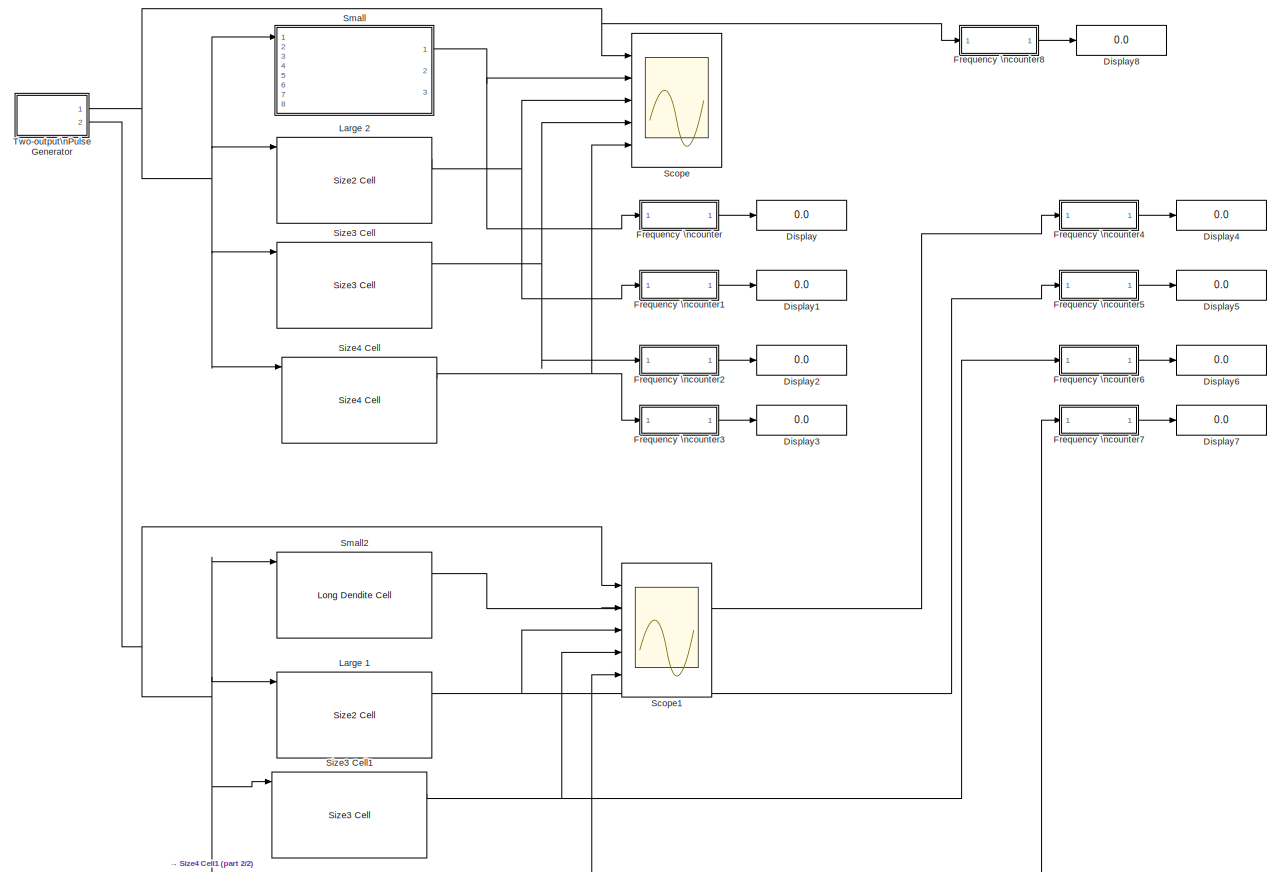
[diagram: root canvas - part 1/2, most of the canvas]
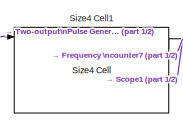
[diagram: root canvas - part 2/2, bottom left region]
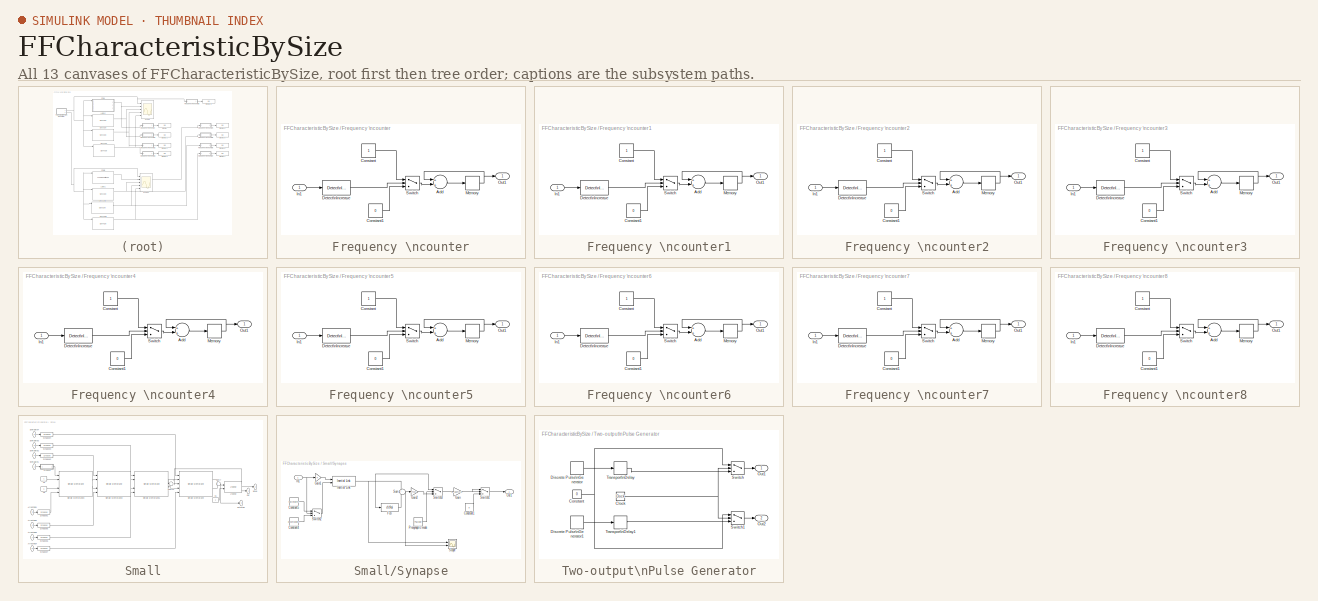
[diagram: thumbnail index - all 13 canvases of the model, root first then tree order]
MODEL FFCharacteristicBySize
KIND model
BLOCK [Display] Display
  Decimation = 1
  Ports = [1]
  SID = 1
BLOCK [Display] Display1
  Decimation = 1
  Ports = [1]
  SID = 2
BLOCK [Display] Display2
  Decimation = 1
  Ports = [1]
  SID = 3
BLOCK [Display] Display3
  Decimation = 1
  Ports = [1]
  SID = 4
BLOCK [Display] Display4
  Decimation = 1
  Ports = [1]
  SID = 309
BLOCK [Display] Display5
  Decimation = 1
  Ports = [1]
  SID = 310
BLOCK [Display] Display6
  Decimation = 1
  Ports = [1]
  SID = 311
BLOCK [Display] Display7
  Decimation = 1
  Ports = [1]
  SID = 312
BLOCK [Display] Display8
  Decimation = 1
  Ports = [1]
  SID = 354
BLOCK [SubSystem] Frequency \ncounter
  Ports = [1, 1]
  RequestExecContextInheritance = off
  SID = 5
BLOCK [Sum] Frequency \ncounter/Add
  InputSameDT = off
  OutDataTypeStr = Inherit: Inherit via internal rule
  Ports = [2, 1]
  SID = 7
  SaturateOnIntegerOverflow = off
BLOCK [Constant] Frequency \ncounter/Constant
  SID = 8
BLOCK [Constant] Frequency \ncounter/Constant1
  SID = 9
  Value = 0
BLOCK [Reference] Frequency \ncounter/Detect\nIncrease  REF=simulink/Logic and Bit\nOperations/Detect\nIncrease
  InputProcessing = Elements as channels (sample based)
  OutDataTypeStr = uint8
  Ports = [1, 1]
  SID = 10
  SourceBlock = simulink/Logic and Bit\nOperations/Detect\nIncrease
  SourceProductBaseCode = SL
  SourceProductName = Simulink
  SourceType = Detect Increase
  vinit = 0.0
BLOCK [Inport] Frequency \ncounter/In1
  IconDisplay = Port number
  SID = 6
BLOCK [Memory] Frequency \ncounter/Memory
  SID = 11
BLOCK [Outport] Frequency \ncounter/Out1
  IconDisplay = Port number
  SID = 13
BLOCK [Switch] Frequency \ncounter/Switch
  Criteria = u2 > Threshold
  InputSameDT = off
  SID = 12
  SaturateOnIntegerOverflow = off
BLOCK [SubSystem] Frequency \ncounter1
  Ports = [1, 1]
  RequestExecContextInheritance = off
  SID = 14
BLOCK [Sum] Frequency \ncounter1/Add
  InputSameDT = off
  OutDataTypeStr = Inherit: Inherit via internal rule
  Ports = [2, 1]
  SID = 16
  SaturateOnIntegerOverflow = off
BLOCK [Constant] Frequency \ncounter1/Constant
  SID = 17
BLOCK [Constant] Frequency \ncounter1/Constant1
  SID = 18
  Value = 0
BLOCK [Reference] Frequency \ncounter1/Detect\nIncrease  REF=simulink/Logic and Bit\nOperations/Detect\nIncrease
  InputProcessing = Elements as channels (sample based)
  OutDataTypeStr = uint8
  Ports = [1, 1]
  SID = 19
  SourceBlock = simulink/Logic and Bit\nOperations/Detect\nIncrease
  SourceProductBaseCode = SL
  SourceProductName = Simulink
  SourceType = Detect Increase
  vinit = 0.0
BLOCK [Inport] Frequency \ncounter1/In1
  IconDisplay = Port number
  SID = 15
BLOCK [Memory] Frequency \ncounter1/Memory
  SID = 20
BLOCK [Outport] Frequency \ncounter1/Out1
  IconDisplay = Port number
  SID = 22
BLOCK [Switch] Frequency \ncounter1/Switch
  Criteria = u2 > Threshold
  InputSameDT = off
  SID = 21
  SaturateOnIntegerOverflow = off
BLOCK [SubSystem] Frequency \ncounter2
  Ports = [1, 1]
  RequestExecContextInheritance = off
  SID = 23
BLOCK [Sum] Frequency \ncounter2/Add
  InputSameDT = off
  OutDataTypeStr = Inherit: Inherit via internal rule
  Ports = [2, 1]
  SID = 25
  SaturateOnIntegerOverflow = off
BLOCK [Constant] Frequency \ncounter2/Constant
  SID = 26
BLOCK [Constant] Frequency \ncounter2/Constant1
  SID = 27
  Value = 0
BLOCK [Reference] Frequency \ncounter2/Detect\nIncrease  REF=simulink/Logic and Bit\nOperations/Detect\nIncrease
  InputProcessing = Elements as channels (sample based)
  OutDataTypeStr = uint8
  Ports = [1, 1]
  SID = 28
  SourceBlock = simulink/Logic and Bit\nOperations/Detect\nIncrease
  SourceProductBaseCode = SL
  SourceProductName = Simulink
  SourceType = Detect Increase
  vinit = 0.0
BLOCK [Inport] Frequency \ncounter2/In1
  IconDisplay = Port number
  SID = 24
BLOCK [Memory] Frequency \ncounter2/Memory
  SID = 29
BLOCK [Outport] Frequency \ncounter2/Out1
  IconDisplay = Port number
  SID = 31
BLOCK [Switch] Frequency \ncounter2/Switch
  Criteria = u2 > Threshold
  InputSameDT = off
  SID = 30
  SaturateOnIntegerOverflow = off
BLOCK [SubSystem] Frequency \ncounter3
  Ports = [1, 1]
  RequestExecContextInheritance = off
  SID = 32
BLOCK [Sum] Frequency \ncounter3/Add
  InputSameDT = off
  OutDataTypeStr = Inherit: Inherit via internal rule
  Ports = [2, 1]
  SID = 34
  SaturateOnIntegerOverflow = off
BLOCK [Constant] Frequency \ncounter3/Constant
  SID = 35
BLOCK [Constant] Frequency \ncounter3/Constant1
  SID = 36
  Value = 0
BLOCK [Reference] Frequency \ncounter3/Detect\nIncrease  REF=simulink/Logic and Bit\nOperations/Detect\nIncrease
  InputProcessing = Elements as channels (sample based)
  OutDataTypeStr = uint8
  Ports = [1, 1]
  SID = 37
  SourceBlock = simulink/Logic and Bit\nOperations/Detect\nIncrease
  SourceProductBaseCode = SL
  SourceProductName = Simulink
  SourceType = Detect Increase
  vinit = 0.0
BLOCK [Inport] Frequency \ncounter3/In1
  IconDisplay = Port number
  SID = 33
BLOCK [Memory] Frequency \ncounter3/Memory
  SID = 38
BLOCK [Outport] Frequency \ncounter3/Out1
  IconDisplay = Port number
  SID = 40
BLOCK [Switch] Frequency \ncounter3/Switch
  Criteria = u2 > Threshold
  InputSameDT = off
  SID = 39
  SaturateOnIntegerOverflow = off
BLOCK [SubSystem] Frequency \ncounter4
  Ports = [1, 1]
  RequestExecContextInheritance = off
  SID = 313
BLOCK [Sum] Frequency \ncounter4/Add
  InputSameDT = off
  OutDataTypeStr = Inherit: Inherit via internal rule
  Ports = [2, 1]
  SID = 315
  SaturateOnIntegerOverflow = off
BLOCK [Constant] Frequency \ncounter4/Constant
  SID = 316
BLOCK [Constant] Frequency \ncounter4/Constant1
  SID = 317
  Value = 0
BLOCK [Reference] Frequency \ncounter4/Detect\nIncrease  REF=simulink/Logic and Bit\nOperations/Detect\nIncrease
  InputProcessing = Elements as channels (sample based)
  OutDataTypeStr = uint8
  Ports = [1, 1]
  SID = 318
  SourceBlock = simulink/Logic and Bit\nOperations/Detect\nIncrease
  SourceProductBaseCode = SL
  SourceProductName = Simulink
  SourceType = Detect Increase
  vinit = 0.0
BLOCK [Inport] Frequency \ncounter4/In1
  IconDisplay = Port number
  SID = 314
BLOCK [Memory] Frequency \ncounter4/Memory
  SID = 319
BLOCK [Outport] Frequency \ncounter4/Out1
  IconDisplay = Port number
  SID = 321
BLOCK [Switch] Frequency \ncounter4/Switch
  Criteria = u2 > Threshold
  InputSameDT = off
  SID = 320
  SaturateOnIntegerOverflow = off
BLOCK [SubSystem] Frequency \ncounter5
  Ports = [1, 1]
  RequestExecContextInheritance = off
  SID = 322
BLOCK [Sum] Frequency \ncounter5/Add
  InputSameDT = off
  OutDataTypeStr = Inherit: Inherit via internal rule
  Ports = [2, 1]
  SID = 324
  SaturateOnIntegerOverflow = off
BLOCK [Constant] Frequency \ncounter5/Constant
  SID = 325
BLOCK [Constant] Frequency \ncounter5/Constant1
  SID = 326
  Value = 0
BLOCK [Reference] Frequency \ncounter5/Detect\nIncrease  REF=simulink/Logic and Bit\nOperations/Detect\nIncrease
  InputProcessing = Elements as channels (sample based)
  OutDataTypeStr = uint8
  Ports = [1, 1]
  SID = 327
  SourceBlock = simulink/Logic and Bit\nOperations/Detect\nIncrease
  SourceProductBaseCode = SL
  SourceProductName = Simulink
  SourceType = Detect Increase
  vinit = 0.0
BLOCK [Inport] Frequency \ncounter5/In1
  IconDisplay = Port number
  SID = 323
BLOCK [Memory] Frequency \ncounter5/Memory
  SID = 328
BLOCK [Outport] Frequency \ncounter5/Out1
  IconDisplay = Port number
  SID = 330
BLOCK [Switch] Frequency \ncounter5/Switch
  Criteria = u2 > Threshold
  InputSameDT = off
  SID = 329
  SaturateOnIntegerOverflow = off
BLOCK [SubSystem] Frequency \ncounter6
  Ports = [1, 1]
  RequestExecContextInheritance = off
  SID = 331
BLOCK [Sum] Frequency \ncounter6/Add
  InputSameDT = off
  OutDataTypeStr = Inherit: Inherit via internal rule
  Ports = [2, 1]
  SID = 333
  SaturateOnIntegerOverflow = off
BLOCK [Constant] Frequency \ncounter6/Constant
  SID = 334
BLOCK [Constant] Frequency \ncounter6/Constant1
  SID = 335
  Value = 0
BLOCK [Reference] Frequency \ncounter6/Detect\nIncrease  REF=simulink/Logic and Bit\nOperations/Detect\nIncrease
  InputProcessing = Elements as channels (sample based)
  OutDataTypeStr = uint8
  Ports = [1, 1]
  SID = 336
  SourceBlock = simulink/Logic and Bit\nOperations/Detect\nIncrease
  SourceProductBaseCode = SL
  SourceProductName = Simulink
  SourceType = Detect Increase
  vinit = 0.0
BLOCK [Inport] Frequency \ncounter6/In1
  IconDisplay = Port number
  SID = 332
BLOCK [Memory] Frequency \ncounter6/Memory
  SID = 337
BLOCK [Outport] Frequency \ncounter6/Out1
  IconDisplay = Port number
  SID = 339
BLOCK [Switch] Frequency \ncounter6/Switch
  Criteria = u2 > Threshold
  InputSameDT = off
  SID = 338
  SaturateOnIntegerOverflow = off
BLOCK [SubSystem] Frequency \ncounter7
  Ports = [1, 1]
  RequestExecContextInheritance = off
  SID = 340
BLOCK [Sum] Frequency \ncounter7/Add
  InputSameDT = off
  OutDataTypeStr = Inherit: Inherit via internal rule
  Ports = [2, 1]
  SID = 342
  SaturateOnIntegerOverflow = off
BLOCK [Constant] Frequency \ncounter7/Constant
  SID = 343
BLOCK [Constant] Frequency \ncounter7/Constant1
  SID = 344
  Value = 0
BLOCK [Reference] Frequency \ncounter7/Detect\nIncrease  REF=simulink/Logic and Bit\nOperations/Detect\nIncrease
  InputProcessing = Elements as channels (sample based)
  OutDataTypeStr = uint8
  Ports = [1, 1]
  SID = 345
  SourceBlock = simulink/Logic and Bit\nOperations/Detect\nIncrease
  SourceProductBaseCode = SL
  SourceProductName = Simulink
  SourceType = Detect Increase
  vinit = 0.0
BLOCK [Inport] Frequency \ncounter7/In1
  IconDisplay = Port number
  SID = 341
BLOCK [Memory] Frequency \ncounter7/Memory
  SID = 346
BLOCK [Outport] Frequency \ncounter7/Out1
  IconDisplay = Port number
  SID = 348
BLOCK [Switch] Frequency \ncounter7/Switch
  Criteria = u2 > Threshold
  InputSameDT = off
  SID = 347
  SaturateOnIntegerOverflow = off
BLOCK [SubSystem] Frequency \ncounter8
  Ports = [1, 1]
  RequestExecContextInheritance = off
  SID = 355
BLOCK [Sum] Frequency \ncounter8/Add
  InputSameDT = off
  OutDataTypeStr = Inherit: Inherit via internal rule
  Ports = [2, 1]
  SID = 357
  SaturateOnIntegerOverflow = off
BLOCK [Constant] Frequency \ncounter8/Constant
  SID = 358
BLOCK [Constant] Frequency \ncounter8/Constant1
  SID = 359
  Value = 0
BLOCK [Reference] Frequency \ncounter8/Detect\nIncrease  REF=simulink/Logic and Bit\nOperations/Detect\nIncrease
  InputProcessing = Elements as channels (sample based)
  OutDataTypeStr = uint8
  Ports = [1, 1]
  SID = 360
  SourceBlock = simulink/Logic and Bit\nOperations/Detect\nIncrease
  SourceProductBaseCode = SL
  SourceProductName = Simulink
  SourceType = Detect Increase
  vinit = 0.0
BLOCK [Inport] Frequency \ncounter8/In1
  IconDisplay = Port number
  SID = 356
BLOCK [Memory] Frequency \ncounter8/Memory
  SID = 361
BLOCK [Outport] Frequency \ncounter8/Out1
  IconDisplay = Port number
  SID = 363
BLOCK [Switch] Frequency \ncounter8/Switch
  Criteria = u2 > Threshold
  InputSameDT = off
  SID = 362
  SaturateOnIntegerOverflow = off
BLOCK [Reference] Large 1  REF=NeuroModelerLibrary/Sized Cells/Size2 Cell
  AllowZeroVariantControls = off
  GeneratePreprocessorConditionals = off
  Ports = [8, 3]
  PropagateVariantConditions = off
  SID = 367
  ShowPortLabels = FromPortIcon
  SourceBlock = NeuroModelerLibrary/Sized Cells/Size2 Cell
  SourceType = SubSystem
  SystemSampleTime = -1
BLOCK [Reference] Large 2  REF=NeuroModelerLibrary/Sized Cells/Size2 Cell
  AllowZeroVariantControls = off
  GeneratePreprocessorConditionals = off
  Ports = [8, 3]
  PropagateVariantConditions = off
  SID = 364
  ShowPortLabels = FromPortIcon
  SourceBlock = NeuroModelerLibrary/Sized Cells/Size2 Cell
  SourceType = SubSystem
  SystemSampleTime = -1
BLOCK [Scope] Scope
  Floating = off
  NumInputPorts = 5
  Ports = [5]
  SID = 141
  ScopeSpecificationString = Simulink.scopes.TimeScopeBlockCfg('CurrentConfiguration', extmgr.ConfigurationSet(extmgr.Configuration('Core','General UI',true),extmgr.Configuration('Core','Source UI',true),extmgr.Configuration('Sources','WiredSimulink',true,'DataLoggingSaveFormat','StructureWithTime','DataLoggingMaxPoints','50000','DataLoggingLimitDataPoints',true,'DataLoggingDecimation','1','DataLoggingDecimateData',true),extm...<+4430ch>
BLOCK [Scope] Scope1
  Floating = off
  NumInputPorts = 5
  Ports = [5]
  SID = 351
  ScopeSpecificationString = Simulink.scopes.TimeScopeBlockCfg('CurrentConfiguration', extmgr.ConfigurationSet(extmgr.Configuration('Core','General UI',true),extmgr.Configuration('Core','Source UI',true),extmgr.Configuration('Sources','WiredSimulink',true,'DataLoggingVariableName','ScopeData1','DataLoggingSaveFormat','StructureWithTime','DataLoggingMaxPoints','50000','DataLoggingLimitDataPoints',true,'DataLoggingDecimation','...<+4482ch>
BLOCK [Reference] Size3 Cell  REF=NeuroModelerLibrary/Sized Cells/Size3 Cell
  AllowZeroVariantControls = off
  GeneratePreprocessorConditionals = off
  Ports = [8, 3]
  PropagateVariantConditions = off
  SID = 365
  ShowPortLabels = FromPortIcon
  SourceBlock = NeuroModelerLibrary/Sized Cells/Size3 Cell
  SourceType = SubSystem
  SystemSampleTime = -1
BLOCK [Reference] Size3 Cell1  REF=NeuroModelerLibrary/Sized Cells/Size3 Cell
  AllowZeroVariantControls = off
  GeneratePreprocessorConditionals = off
  Ports = [8, 3]
  PropagateVariantConditions = off
  SID = 368
  ShowPortLabels = FromPortIcon
  SourceBlock = NeuroModelerLibrary/Sized Cells/Size3 Cell
  SourceType = SubSystem
  SystemSampleTime = -1
BLOCK [Reference] Size4 Cell  REF=NeuroModelerLibrary/Sized Cells/Size4 Cell
  AllowZeroVariantControls = off
  GeneratePreprocessorConditionals = off
  Ports = [8, 3]
  PropagateVariantConditions = off
  SID = 366
  ShowPortLabels = FromPortIcon
  SourceBlock = NeuroModelerLibrary/Sized Cells/Size4 Cell
  SourceType = SubSystem
  SystemSampleTime = -1
BLOCK [Reference] Size4 Cell1  REF=NeuroModelerLibrary/Sized Cells/Size4 Cell
  AllowZeroVariantControls = off
  GeneratePreprocessorConditionals = off
  Ports = [8, 3]
  PropagateVariantConditions = off
  SID = 369
  ShowPortLabels = FromPortIcon
  SourceBlock = NeuroModelerLibrary/Sized Cells/Size4 Cell
  SourceType = SubSystem
  SystemSampleTime = -1
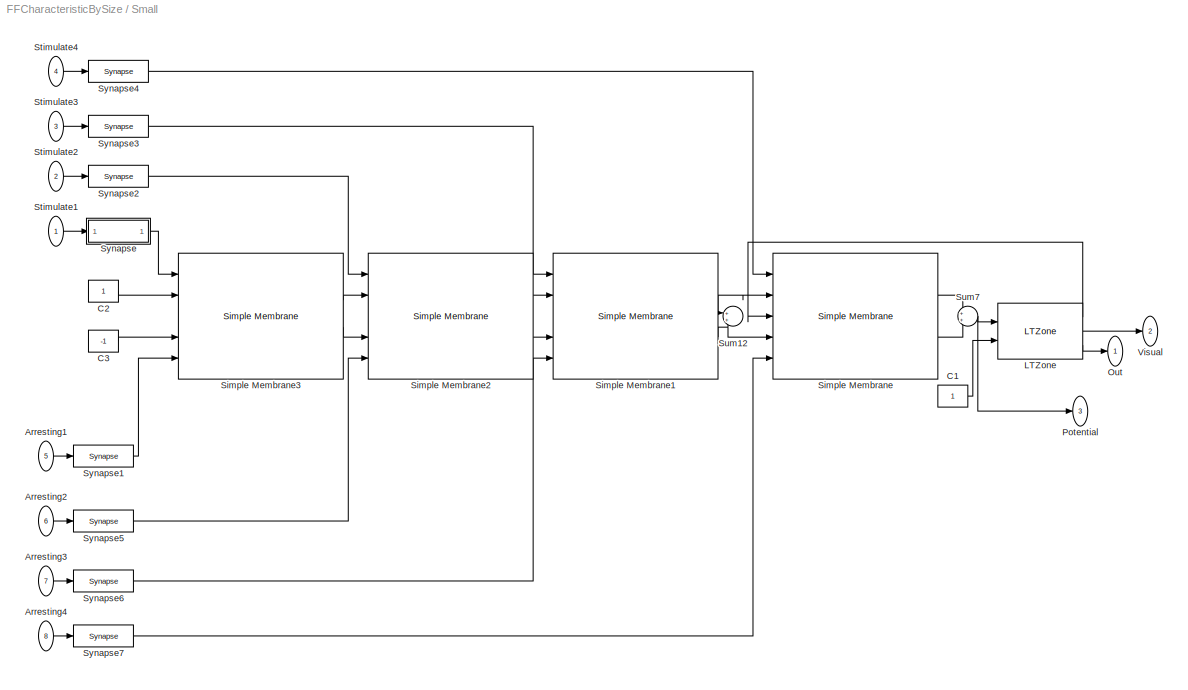
BLOCK [SubSystem] Small
  AncestorBlock = NeuroModelerLibrary/Dendrites Cells/Long Dendite Cell
  Ports = [8, 3]
  RequestExecContextInheritance = off
  SID = 305
BLOCK [Inport] Small/Arresting1
  IconDisplay = Port number
  Port = 5
  SID = 305:42
BLOCK [Inport] Small/Arresting2
  IconDisplay = Port number
  Port = 6
  SID = 305:43
BLOCK [Inport] Small/Arresting3
  IconDisplay = Port number
  Port = 7
  SID = 305:44
BLOCK [Inport] Small/Arresting4
  IconDisplay = Port number
  Port = 8
  SID = 305:45
BLOCK [Constant] Small/C1
  SID = 305:46
BLOCK [Constant] Small/C2
  SID = 305:47
BLOCK [Constant] Small/C3
  SID = 305:48
  Value = -1
BLOCK [Reference] Small/LTZone  REF=NeuroModelerLibrary/Neuron Elements/LTZone
  FB = 1.7
  IT = 0.005
  NM = 1
  Ports = [2, 3]
  SID = 305:49
  SourceBlock = NeuroModelerLibrary/Neuron Elements/LTZone
  SourceType = Ion pump
  T = 0.001
BLOCK [Outport] Small/Out
  IconDisplay = Port number
  SID = 305:64
BLOCK [Outport] Small/Potential
  IconDisplay = Port number
  Port = 3
  SID = 305:66
BLOCK [Reference] Small/Simple Membrane  REF=NeuroModelerLibrary/Neuron Elements/Simple Membrane
  ACm = 1e-9
  ARFm = 1e8
  ARm = 1e7
  ECm = 1e-9
  ERFm = 1e8
  ERm = 1e7
  Ports = [5, 2]
  SID = 305:50
  SourceBlock = NeuroModelerLibrary/Neuron Elements/Simple Membrane
BLOCK [Reference] Small/Simple Membrane1  REF=NeuroModelerLibrary/Neuron Elements/Simple Membrane
  ACm = 1e-9
  ARFm = 1e8
  ARm = 1e7
  ECm = 1e-9
  ERFm = 1e8
  ERm = 1e7
  Ports = [5, 2]
  SID = 305:51
  SourceBlock = NeuroModelerLibrary/Neuron Elements/Simple Membrane
BLOCK [Reference] Small/Simple Membrane2  REF=NeuroModelerLibrary/Neuron Elements/Simple Membrane
  ACm = 1e-9
  ARFm = 1e8
  ARm = 1e7
  ECm = 1e-9
  ERFm = 1e8
  ERm = 1e7
  Ports = [5, 2]
  SID = 305:52
  SourceBlock = NeuroModelerLibrary/Neuron Elements/Simple Membrane
BLOCK [Reference] Small/Simple Membrane3  REF=NeuroModelerLibrary/Neuron Elements/Simple Membrane
  ACm = 1e-9
  ARFm = 1e8
  ARm = 1e7
  ECm = 1e-9
  ERFm = 1e8
  ERm = 1e7
  Ports = [5, 2]
  SID = 305:53
  SourceBlock = NeuroModelerLibrary/Neuron Elements/Simple Membrane
BLOCK [Inport] Small/Stimulate1
  IconDisplay = Port number
  SID = 305:38
BLOCK [Inport] Small/Stimulate2
  IconDisplay = Port number
  Port = 2
  SID = 305:39
BLOCK [Inport] Small/Stimulate3
  IconDisplay = Port number
  Port = 3
  SID = 305:40
BLOCK [Inport] Small/Stimulate4
  IconDisplay = Port number
  Port = 4
  SID = 305:41
BLOCK [Sum] Small/Sum12
  IconShape = round
  Ports = [2, 1]
  SID = 305:54
BLOCK [Sum] Small/Sum7
  IconShape = round
  Ports = [2, 1]
  SID = 305:55
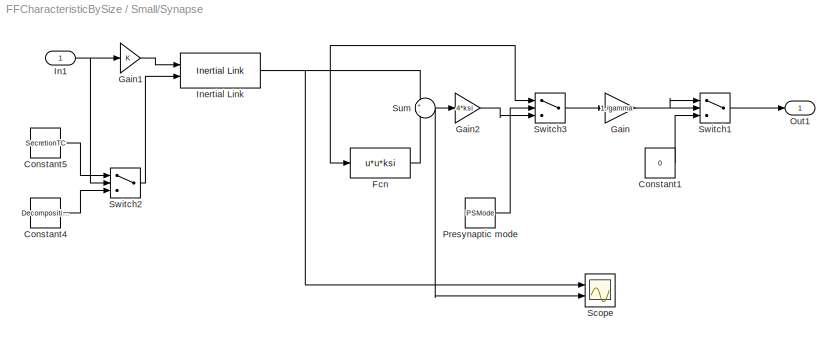
BLOCK [SubSystem] Small/Synapse
  Ports = [1, 1]
  RequestExecContextInheritance = off
  SID = 305:56
BLOCK [Constant] Small/Synapse/Constant1
  SID = 305:766
  Value = 0
BLOCK [Constant] Small/Synapse/Constant4
  SID = 305:767
  Value = DecompositionTC
BLOCK [Constant] Small/Synapse/Constant5
  SID = 305:768
  Value = SecretionTC
BLOCK [Fcn] Small/Synapse/Fcn
  Expr = u*u*ksi
  SID = 305:769
BLOCK [Gain] Small/Synapse/Gain
  Gain = 1./gamma
  SID = 305:770
BLOCK [Gain] Small/Synapse/Gain1
  SID = 305:771
BLOCK [Gain] Small/Synapse/Gain2
  Gain = 4*ksi
  SID = 305:772
BLOCK [Inport] Small/Synapse/In1
  IconDisplay = Port number
  SID = 305:765
BLOCK [Reference] Small/Synapse/Inertial Link  REF=NeuroModelerLibrary/Support/Inertial Link
  AllowZeroVariantControls = off
  GeneratePreprocessorConditionals = off
  Ports = [2, 1]
  PropagateVariantConditions = off
  SID = 305:773
  ShowPortLabels = FromPortIcon
  SourceBlock = NeuroModelerLibrary/Support/Inertial Link
  SourceType = SubSystem
  SystemSampleTime = -1
BLOCK [Outport] Small/Synapse/Out1
  IconDisplay = Port number
  SID = 305:780
BLOCK [Constant] Small/Synapse/Presynaptic mode
  SID = 305:774
  Value = PSMode
BLOCK [Scope] Small/Synapse/Scope
  Floating = off
  NumInputPorts = 2
  Ports = [2]
  SID = 305:775
  ScopeSpecificationString = Simulink.scopes.TimeScopeBlockCfg('CurrentConfiguration', extmgr.ConfigurationSet(extmgr.Configuration('Core','General UI',true),extmgr.Configuration('Core','Source UI',true),extmgr.Configuration('Sources','WiredSimulink',true,'DataLoggingSaveFormat','StructureWithTime','DataLoggingLimitDataPoints',true,'DataLoggingDecimation','1','DataLoggingDecimateData',true),extmgr.Configuration('Visuals','Tim...<+2301ch>
BLOCK [Sum] Small/Synapse/Sum
  IconShape = round
  InputSameDT = off
  Inputs = +-
  OutDataTypeStr = Inherit: Inherit via internal rule
  Ports = [2, 1]
  SID = 305:776
BLOCK [Switch] Small/Synapse/Switch1
  InputSameDT = off
  SID = 305:777
  SaturateOnIntegerOverflow = off
BLOCK [Switch] Small/Synapse/Switch2
  InputSameDT = off
  SID = 305:778
  SaturateOnIntegerOverflow = off
  Threshold = 1
BLOCK [Switch] Small/Synapse/Switch3
  Criteria = u2 > Threshold
  InputSameDT = off
  SID = 305:779
  SaturateOnIntegerOverflow = off
BLOCK [Reference] Small/Synapse1  REF=NeuroModelerLibrary/Neuron Elements/Synapse
  DecompositionTC = 0.01
  Ports = [1, 1]
  SID = 305:57
  SecretionTC = 0.001
  SourceBlock = NeuroModelerLibrary/Neuron Elements/Synapse
  UseKsi = on
  gamma = 1e8
  ksi = 2
BLOCK [Reference] Small/Synapse2  REF=NeuroModelerLibrary/Neuron Elements/Synapse
  DecompositionTC = 0.01
  Ports = [1, 1]
  SID = 305:58
  SecretionTC = 0.001
  SourceBlock = NeuroModelerLibrary/Neuron Elements/Synapse
  UseKsi = on
  gamma = 1e8
  ksi = 2
BLOCK [Reference] Small/Synapse3  REF=NeuroModelerLibrary/Neuron Elements/Synapse
  DecompositionTC = 0.01
  Ports = [1, 1]
  SID = 305:59
  SecretionTC = 0.001
  SourceBlock = NeuroModelerLibrary/Neuron Elements/Synapse
  UseKsi = on
  gamma = 1e8
  ksi = 2
BLOCK [Reference] Small/Synapse4  REF=NeuroModelerLibrary/Neuron Elements/Synapse
  DecompositionTC = 0.01
  Ports = [1, 1]
  SID = 305:60
  SecretionTC = 0.001
  SourceBlock = NeuroModelerLibrary/Neuron Elements/Synapse
  UseKsi = on
  gamma = 1e8
  ksi = 2
BLOCK [Reference] Small/Synapse5  REF=NeuroModelerLibrary/Neuron Elements/Synapse
  DecompositionTC = 0.01
  Ports = [1, 1]
  SID = 305:61
  SecretionTC = 0.001
  SourceBlock = NeuroModelerLibrary/Neuron Elements/Synapse
  UseKsi = on
  gamma = 1e8
  ksi = 2
BLOCK [Reference] Small/Synapse6  REF=NeuroModelerLibrary/Neuron Elements/Synapse
  DecompositionTC = 0.01
  Ports = [1, 1]
  SID = 305:62
  SecretionTC = 0.001
  SourceBlock = NeuroModelerLibrary/Neuron Elements/Synapse
  UseKsi = on
  gamma = 1e8
  ksi = 2
BLOCK [Reference] Small/Synapse7  REF=NeuroModelerLibrary/Neuron Elements/Synapse
  DecompositionTC = 0.01
  Ports = [1, 1]
  SID = 305:63
  SecretionTC = 0.001
  SourceBlock = NeuroModelerLibrary/Neuron Elements/Synapse
  UseKsi = on
  gamma = 1e8
  ksi = 2
BLOCK [Outport] Small/Visual
  IconDisplay = Port number
  Port = 2
  SID = 305:65
BLOCK [Reference] Small2  REF=NeuroModelerLibrary/Dendrites Cells/Long Dendite Cell
  AllowZeroVariantControls = off
  GeneratePreprocessorConditionals = off
  Ports = [8, 3]
  PropagateVariantConditions = off
  SID = 352
  ShowPortLabels = FromPortIcon
  SourceBlock = NeuroModelerLibrary/Dendrites Cells/Long Dendite Cell
  SourceType = SubSystem
  SystemSampleTime = -1
BLOCK [SubSystem] Two-output\nPulse Generator
  Ports = [0, 2]
  RequestExecContextInheritance = off
  SID = 294
BLOCK [Clock] Two-output\nPulse Generator/Clock
  SID = 295
BLOCK [Constant] Two-output\nPulse Generator/Constant
  SID = 296
  Value = 0
BLOCK [DiscretePulseGenerator] Two-output\nPulse Generator/Discrete Pulse\nGenerator
  Amplitude = A
  Period = P1
  Ports = [0, 1]
  PulseWidth = PW
  SID = 297
  SampleTime = ST
BLOCK [DiscretePulseGenerator] Two-output\nPulse Generator/Discrete Pulse\nGenerator1
  Amplitude = A
  Period = P2
  Ports = [0, 1]
  PulseWidth = PW
  SID = 298
  SampleTime = ST
BLOCK [Outport] Two-output\nPulse Generator/Out1
  IconDisplay = Port number
  InitialOutput = 0
  SID = 303
BLOCK [Outport] Two-output\nPulse Generator/Out2
  IconDisplay = Port number
  InitialOutput = 0
  Port = 2
  SID = 304
BLOCK [Switch] Two-output\nPulse Generator/Switch
  SID = 299
  Threshold = OOff1
BLOCK [Switch] Two-output\nPulse Generator/Switch1
  SID = 300
  Threshold = OOff2
BLOCK [TransportDelay] Two-output\nPulse Generator/Transport\nDelay
  DelayTime = OOn1
  Ports = [1, 1]
  SID = 301
BLOCK [TransportDelay] Two-output\nPulse Generator/Transport\nDelay1
  DelayTime = OOn2
  Ports = [1, 1]
  SID = 302
LINE Frequency \ncounter/Add:1 -> Frequency \ncounter/Memory:1
LINE Frequency \ncounter/Constant1:1 -> Frequency \ncounter/Switch:3
LINE Frequency \ncounter/Constant:1 -> Frequency \ncounter/Switch:1
LINE Frequency \ncounter/Detect\nIncrease:1 -> Frequency \ncounter/Switch:2
LINE Frequency \ncounter/In1:1 -> Frequency \ncounter/Detect\nIncrease:1
NET Frequency \ncounter/Memory:1 -> Frequency \ncounter/Add:1, Frequency \ncounter/Out1:1
LINE Frequency \ncounter/Switch:1 -> Frequency \ncounter/Add:2
LINE Frequency \ncounter1/Add:1 -> Frequency \ncounter1/Memory:1
LINE Frequency \ncounter1/Constant1:1 -> Frequency \ncounter1/Switch:3
LINE Frequency \ncounter1/Constant:1 -> Frequency \ncounter1/Switch:1
LINE Frequency \ncounter1/Detect\nIncrease:1 -> Frequency \ncounter1/Switch:2
LINE Frequency \ncounter1/In1:1 -> Frequency \ncounter1/Detect\nIncrease:1
NET Frequency \ncounter1/Memory:1 -> Frequency \ncounter1/Add:1, Frequency \ncounter1/Out1:1
LINE Frequency \ncounter1/Switch:1 -> Frequency \ncounter1/Add:2
LINE Frequency \ncounter1:1 -> Display1:1
LINE Frequency \ncounter2/Add:1 -> Frequency \ncounter2/Memory:1
LINE Frequency \ncounter2/Constant1:1 -> Frequency \ncounter2/Switch:3
LINE Frequency \ncounter2/Constant:1 -> Frequency \ncounter2/Switch:1
LINE Frequency \ncounter2/Detect\nIncrease:1 -> Frequency \ncounter2/Switch:2
LINE Frequency \ncounter2/In1:1 -> Frequency \ncounter2/Detect\nIncrease:1
NET Frequency \ncounter2/Memory:1 -> Frequency \ncounter2/Add:1, Frequency \ncounter2/Out1:1
LINE Frequency \ncounter2/Switch:1 -> Frequency \ncounter2/Add:2
LINE Frequency \ncounter2:1 -> Display2:1
LINE Frequency \ncounter3/Add:1 -> Frequency \ncounter3/Memory:1
LINE Frequency \ncounter3/Constant1:1 -> Frequency \ncounter3/Switch:3
LINE Frequency \ncounter3/Constant:1 -> Frequency \ncounter3/Switch:1
LINE Frequency \ncounter3/Detect\nIncrease:1 -> Frequency \ncounter3/Switch:2
LINE Frequency \ncounter3/In1:1 -> Frequency \ncounter3/Detect\nIncrease:1
NET Frequency \ncounter3/Memory:1 -> Frequency \ncounter3/Add:1, Frequency \ncounter3/Out1:1
LINE Frequency \ncounter3/Switch:1 -> Frequency \ncounter3/Add:2
LINE Frequency \ncounter3:1 -> Display3:1
LINE Frequency \ncounter4/Add:1 -> Frequency \ncounter4/Memory:1
LINE Frequency \ncounter4/Constant1:1 -> Frequency \ncounter4/Switch:3
LINE Frequency \ncounter4/Constant:1 -> Frequency \ncounter4/Switch:1
LINE Frequency \ncounter4/Detect\nIncrease:1 -> Frequency \ncounter4/Switch:2
LINE Frequency \ncounter4/In1:1 -> Frequency \ncounter4/Detect\nIncrease:1
NET Frequency \ncounter4/Memory:1 -> Frequency \ncounter4/Add:1, Frequency \ncounter4/Out1:1
LINE Frequency \ncounter4/Switch:1 -> Frequency \ncounter4/Add:2
LINE Frequency \ncounter4:1 -> Display4:1
LINE Frequency \ncounter5/Add:1 -> Frequency \ncounter5/Memory:1
LINE Frequency \ncounter5/Constant1:1 -> Frequency \ncounter5/Switch:3
LINE Frequency \ncounter5/Constant:1 -> Frequency \ncounter5/Switch:1
LINE Frequency \ncounter5/Detect\nIncrease:1 -> Frequency \ncounter5/Switch:2
LINE Frequency \ncounter5/In1:1 -> Frequency \ncounter5/Detect\nIncrease:1
NET Frequency \ncounter5/Memory:1 -> Frequency \ncounter5/Add:1, Frequency \ncounter5/Out1:1
LINE Frequency \ncounter5/Switch:1 -> Frequency \ncounter5/Add:2
LINE Frequency \ncounter5:1 -> Display5:1
LINE Frequency \ncounter6/Add:1 -> Frequency \ncounter6/Memory:1
LINE Frequency \ncounter6/Constant1:1 -> Frequency \ncounter6/Switch:3
LINE Frequency \ncounter6/Constant:1 -> Frequency \ncounter6/Switch:1
LINE Frequency \ncounter6/Detect\nIncrease:1 -> Frequency \ncounter6/Switch:2
LINE Frequency \ncounter6/In1:1 -> Frequency \ncounter6/Detect\nIncrease:1
NET Frequency \ncounter6/Memory:1 -> Frequency \ncounter6/Add:1, Frequency \ncounter6/Out1:1
LINE Frequency \ncounter6/Switch:1 -> Frequency \ncounter6/Add:2
LINE Frequency \ncounter6:1 -> Display6:1
LINE Frequency \ncounter7/Add:1 -> Frequency \ncounter7/Memory:1
LINE Frequency \ncounter7/Constant1:1 -> Frequency \ncounter7/Switch:3
LINE Frequency \ncounter7/Constant:1 -> Frequency \ncounter7/Switch:1
LINE Frequency \ncounter7/Detect\nIncrease:1 -> Frequency \ncounter7/Switch:2
LINE Frequency \ncounter7/In1:1 -> Frequency \ncounter7/Detect\nIncrease:1
NET Frequency \ncounter7/Memory:1 -> Frequency \ncounter7/Add:1, Frequency \ncounter7/Out1:1
LINE Frequency \ncounter7/Switch:1 -> Frequency \ncounter7/Add:2
LINE Frequency \ncounter7:1 -> Display7:1
LINE Frequency \ncounter8/Add:1 -> Frequency \ncounter8/Memory:1
LINE Frequency \ncounter8/Constant1:1 -> Frequency \ncounter8/Switch:3
LINE Frequency \ncounter8/Constant:1 -> Frequency \ncounter8/Switch:1
LINE Frequency \ncounter8/Detect\nIncrease:1 -> Frequency \ncounter8/Switch:2
LINE Frequency \ncounter8/In1:1 -> Frequency \ncounter8/Detect\nIncrease:1
NET Frequency \ncounter8/Memory:1 -> Frequency \ncounter8/Add:1, Frequency \ncounter8/Out1:1
LINE Frequency \ncounter8/Switch:1 -> Frequency \ncounter8/Add:2
LINE Frequency \ncounter8:1 -> Display8:1
LINE Frequency \ncounter:1 -> Display:1
NET Large 1:1 -> Frequency \ncounter5:1, Scope1:3
NET Large 2:1 -> Frequency \ncounter1:1, Scope:3
NET Size3 Cell1:1 -> Frequency \ncounter6:1, Scope1:4
NET Size3 Cell:1 -> Frequency \ncounter2:1, Scope:4
NET Size4 Cell1:1 -> Frequency \ncounter7:1, Scope1:5
NET Size4 Cell:1 -> Frequency \ncounter3:1, Scope:5
LINE Small/Arresting1:1 -> Small/Synapse1:1
LINE Small/Arresting2:1 -> Small/Synapse5:1
LINE Small/Arresting3:1 -> Small/Synapse6:1
LINE Small/Arresting4:1 -> Small/Synapse7:1
LINE Small/C1:1 -> Small/LTZone:2
LINE Small/C2:1 -> Small/Simple Membrane3:2
LINE Small/C3:1 -> Small/Simple Membrane3:4
LINE Small/LTZone:1 -> Small/Simple Membrane:3
LINE Small/LTZone:2 -> Small/Visual:1
LINE Small/LTZone:3 -> Small/Out:1
NET Small/Simple Membrane1:1 -> Small/Simple Membrane:2, Small/Sum12:1
NET Small/Simple Membrane1:2 -> Small/Simple Membrane:4, Small/Sum12:2
LINE Small/Simple Membrane2:1 -> Small/Simple Membrane1:2
LINE Small/Simple Membrane2:2 -> Small/Simple Membrane1:4
LINE Small/Simple Membrane3:1 -> Small/Simple Membrane2:2
LINE Small/Simple Membrane3:2 -> Small/Simple Membrane2:4
LINE Small/Simple Membrane:1 -> Small/Sum7:1
LINE Small/Simple Membrane:2 -> Small/Sum7:2
LINE Small/Stimulate1:1 -> Small/Synapse:1
LINE Small/Stimulate2:1 -> Small/Synapse2:1
LINE Small/Stimulate3:1 -> Small/Synapse3:1
LINE Small/Stimulate4:1 -> Small/Synapse4:1
NET Small/Sum7:1 -> Small/LTZone:1, Small/Potential:1
LINE Small/Synapse/Constant1:1 -> Small/Synapse/Switch1:3
LINE Small/Synapse/Constant4:1 -> Small/Synapse/Switch2:3
LINE Small/Synapse/Constant5:1 -> Small/Synapse/Switch2:1
LINE Small/Synapse/Fcn:1 -> Small/Synapse/Sum:2
LINE Small/Synapse/Gain1:1 -> Small/Synapse/Inertial Link:1
LINE Small/Synapse/Gain2:1 -> Small/Synapse/Switch3:3
NET Small/Synapse/Gain:1 -> Small/Synapse/Switch1:1, Small/Synapse/Switch1:2
NET Small/Synapse/In1:1 -> Small/Synapse/Gain1:1, Small/Synapse/Switch2:2
NET Small/Synapse/Inertial Link:1 -> Small/Synapse/Fcn:1, Small/Synapse/Scope:1, Small/Synapse/Sum:1, Small/Synapse/Switch3:1
LINE Small/Synapse/Presynaptic mode:1 -> Small/Synapse/Switch3:2
NET Small/Synapse/Sum:1 -> Small/Synapse/Gain2:1, Small/Synapse/Scope:2
LINE Small/Synapse/Switch1:1 -> Small/Synapse/Out1:1
LINE Small/Synapse/Switch2:1 -> Small/Synapse/Inertial Link:2
LINE Small/Synapse/Switch3:1 -> Small/Synapse/Gain:1
LINE Small/Synapse1:1 -> Small/Simple Membrane3:5
LINE Small/Synapse2:1 -> Small/Simple Membrane2:1
LINE Small/Synapse3:1 -> Small/Simple Membrane1:1
LINE Small/Synapse4:1 -> Small/Simple Membrane:1
LINE Small/Synapse5:1 -> Small/Simple Membrane2:5
LINE Small/Synapse6:1 -> Small/Simple Membrane1:5
LINE Small/Synapse7:1 -> Small/Simple Membrane:5
LINE Small/Synapse:1 -> Small/Simple Membrane3:1
NET Small2:1 -> Frequency \ncounter4:1, Scope1:2
NET Small:1 -> Frequency \ncounter:1, Scope:2
NET Two-output\nPulse Generator/Clock:1 -> Two-output\nPulse Generator/Switch1:2, Two-output\nPulse Generator/Switch:2
NET Two-output\nPulse Generator/Constant:1 -> Two-output\nPulse Generator/Switch1:1, Two-output\nPulse Generator/Switch:1
LINE Two-output\nPulse Generator/Discrete Pulse\nGenerator1:1 -> Two-output\nPulse Generator/Transport\nDelay1:1
LINE Two-output\nPulse Generator/Discrete Pulse\nGenerator:1 -> Two-output\nPulse Generator/Transport\nDelay:1
LINE Two-output\nPulse Generator/Switch1:1 -> Two-output\nPulse Generator/Out2:1
LINE Two-output\nPulse Generator/Switch:1 -> Two-output\nPulse Generator/Out1:1
LINE Two-output\nPulse Generator/Transport\nDelay1:1 -> Two-output\nPulse Generator/Switch1:3
LINE Two-output\nPulse Generator/Transport\nDelay:1 -> Two-output\nPulse Generator/Switch:3
NET Two-output\nPulse Generator:1 -> Frequency \ncounter8:1, Large 2:1, Scope:1, Size3 Cell:1, Size4 Cell:1, Small:1
NET Two-output\nPulse Generator:2 -> Large 1:1, Scope1:1, Size3 Cell1:1, Size4 Cell1:1, Small2:1
note: NET lines group one-source signal fan-out (src -> all destinations, sorted); 1:1 wires keep LINE
